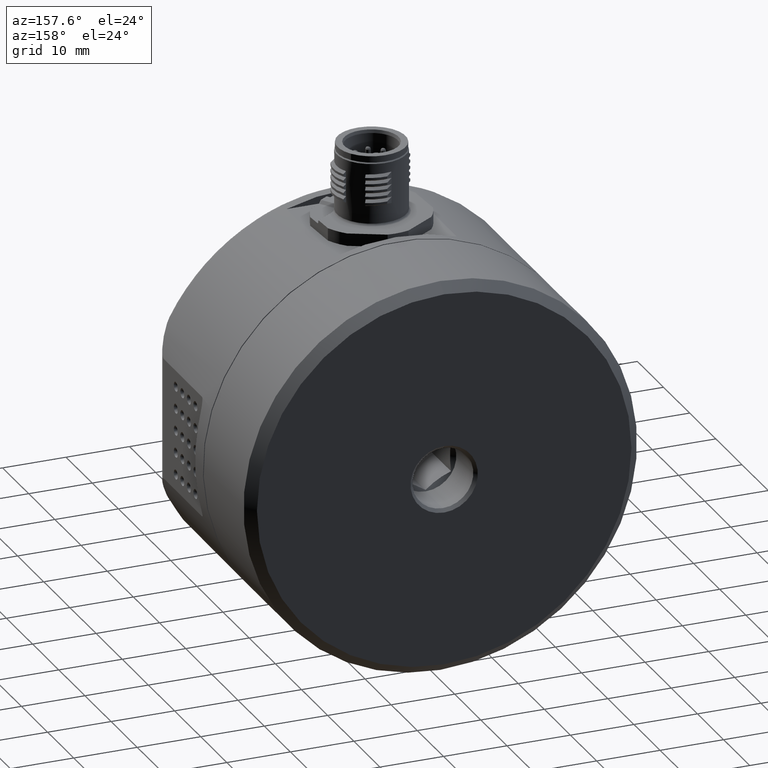
[diagram: clean part render]
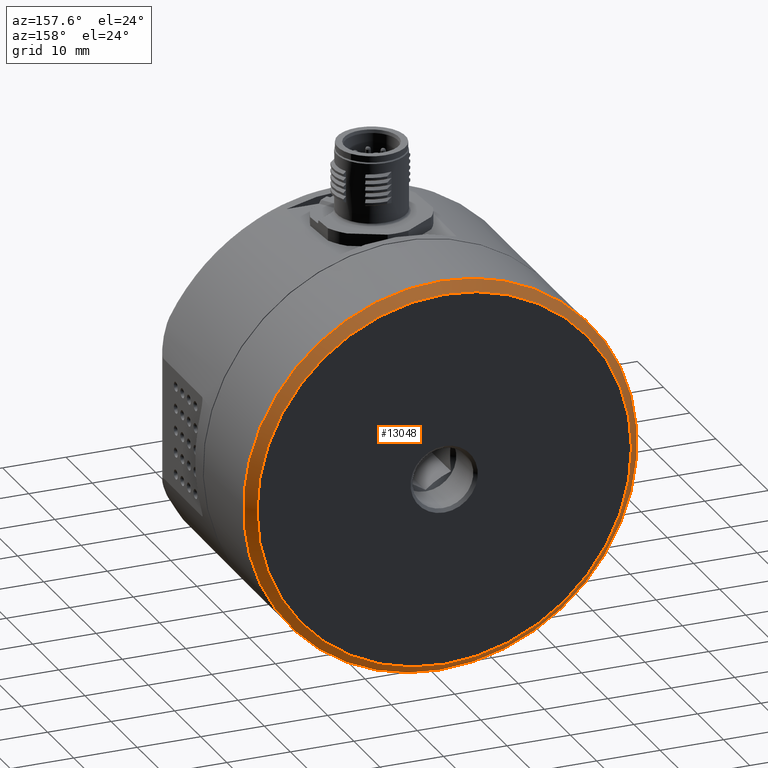
[diagram: same view with one face highlighted and labeled with its STEP entity id]
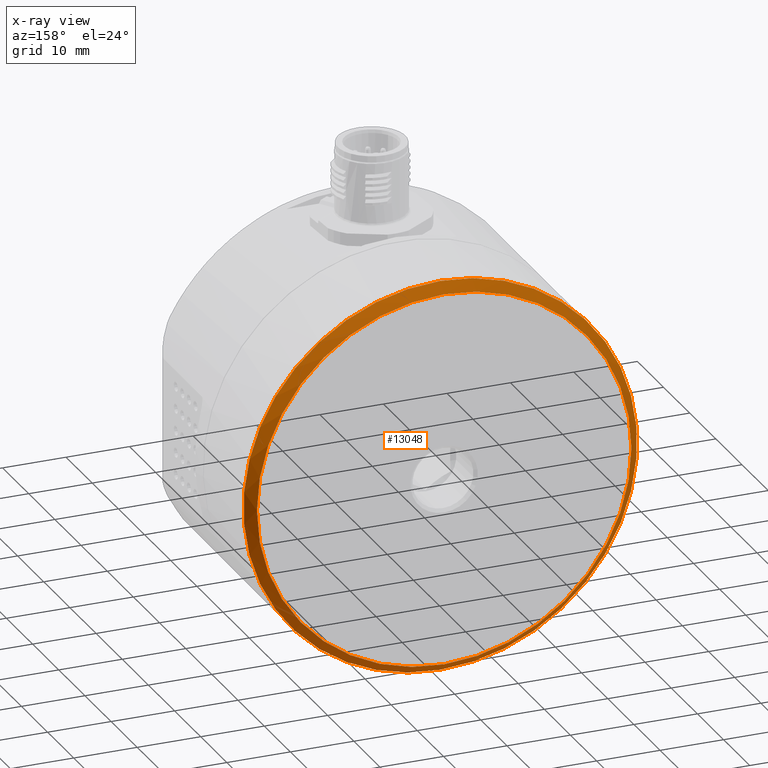
[diagram: x-ray of the same camera — body ghosted, the highlighted face saturated]
A machine part, auxiliary view. The second image highlights one B-rep face of the part: STEP entity #13048.
The next image is the same camera in x-ray: the body ghosted, the highlighted face saturated — about 0% of this face is hidden behind the body in this view.
In plain terms, the highlighted conical surface has half-angle 45 deg.
Its self-contained STEP definition (entity closure, byte-faithful):
#23 = CIRCLE ( 'NONE', #9003, 31.00000000000000000 ) ;
#1999 = DIRECTION ( 'NONE',  ( -3.333316502533546444E-16, 1.000000000000000000, 5.517171690293078260E-17 ) ) ;
#2328 = CARTESIAN_POINT ( 'NONE',  ( -5.064016651844635864E-16, 46.00000000000000000, -1.862681752221586144E-16 ) ) ;
#2501 = VERTEX_POINT ( 'NONE', #9438 ) ;
#2514 = EDGE_LOOP ( 'NONE', ( #7379 ) ) ;
#3245 = CARTESIAN_POINT ( 'NONE',  ( -6.404189804427754149E-18, 44.49999999999998579, -2.690257505765554416E-16 ) ) ;
#3406 = CARTESIAN_POINT ( 'NONE',  ( -5.064016651844635864E-16, 46.00000000000000000, -1.862681752221586144E-16 ) ) ;
#3923 = DIRECTION ( 'NONE',  ( 5.551115123125780853E-17, 0.000000000000000000, 1.000000000000000000 ) ) ;
#4463 = AXIS2_PLACEMENT_3D ( 'NONE', #2328, #8047, #3923 ) ;
#4659 = DIRECTION ( 'NONE',  ( 3.333316502533546937E-16, -1.000000000000000000, -5.517171690293078876E-17 ) ) ;
#5200 = EDGE_CURVE ( 'NONE', #12550, #12550, #16618, .T. ) ;
#7379 = ORIENTED_EDGE ( 'NONE', *, *, #5200, .F. ) ;
#7664 = ORIENTED_EDGE ( 'NONE', *, *, #15751, .F. ) ;
#7720 = DIRECTION ( 'NONE',  ( 5.551115123125780853E-17, 0.000000000000000000, 1.000000000000000000 ) ) ;
#8047 = DIRECTION ( 'NONE',  ( 3.333316502533546937E-16, -1.000000000000000000, -5.517171690293078876E-17 ) ) ;
#9003 = AXIS2_PLACEMENT_3D ( 'NONE', #3245, #4659, #13118 ) ;
#9345 = CARTESIAN_POINT ( 'NONE',  ( 1.131177296137641620E-15, 46.00000000000000000, 29.50000000000000000 ) ) ;
#9424 = AXIS2_PLACEMENT_3D ( 'NONE', #3406, #1999, #7720 ) ;
#9438 = CARTESIAN_POINT ( 'NONE',  ( 1.714441498364564370E-15, 44.49999999999998579, 31.00000000000000000 ) ) ;
#9453 = FACE_BOUND ( 'NONE', #2514, .T. ) ;
#12550 = VERTEX_POINT ( 'NONE', #9345 ) ;
#12779 = EDGE_LOOP ( 'NONE', ( #7664 ) ) ;
#13048 = ADVANCED_FACE ( 'NONE', ( #15294, #9453 ), #13464, .T. ) ;
#13118 = DIRECTION ( 'NONE',  ( 5.551115123125780853E-17, 0.000000000000000000, 1.000000000000000000 ) ) ;
#13464 = CONICAL_SURFACE ( 'NONE', #4463, 29.50000000000000000, 0.7853981633974447263 ) ;
#15294 = FACE_OUTER_BOUND ( 'NONE', #12779, .T. ) ;
#15751 = EDGE_CURVE ( 'NONE', #2501, #2501, #23, .T. ) ;
#16618 = CIRCLE ( 'NONE', #9424, 29.50000000000000000 ) ;